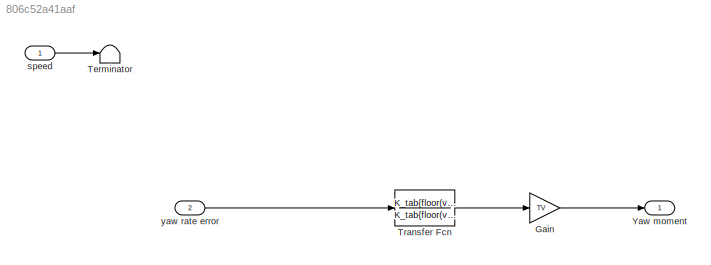
MODEL slx_806c52a41aaf
KIND model
CONFIG AbsTol = auto
CONFIG EnableMultiTasking = off
CONFIG FixedStep = Ts
CONFIG MaxStep = auto
CONFIG MinStep = auto
CONFIG RelTol = 1e-3
CONFIG SampleTimeConstraint = Unconstrained
CONFIG SolverName = FixedStepAuto
CONFIG StartTime = 0.0
CONFIG StopTime = 10.0
BLOCK [Gain] Gain
  Gain = TV
BLOCK [Terminator] Terminator
BLOCK [TransferFcn] Transfer Fcn
  Denominator = K_tab{floor(v0/5),2}
  Numerator = K_tab{floor(v0/5),1}
BLOCK [Outport] Yaw moment
BLOCK [Inport] speed
BLOCK [Inport] yaw rate error
  Port = 2
LINE Gain:1 -> Yaw moment:1
LINE Transfer Fcn:1 -> Gain:1
LINE speed:1 -> Terminator:1
LINE yaw rate error:1 -> Transfer Fcn:1
